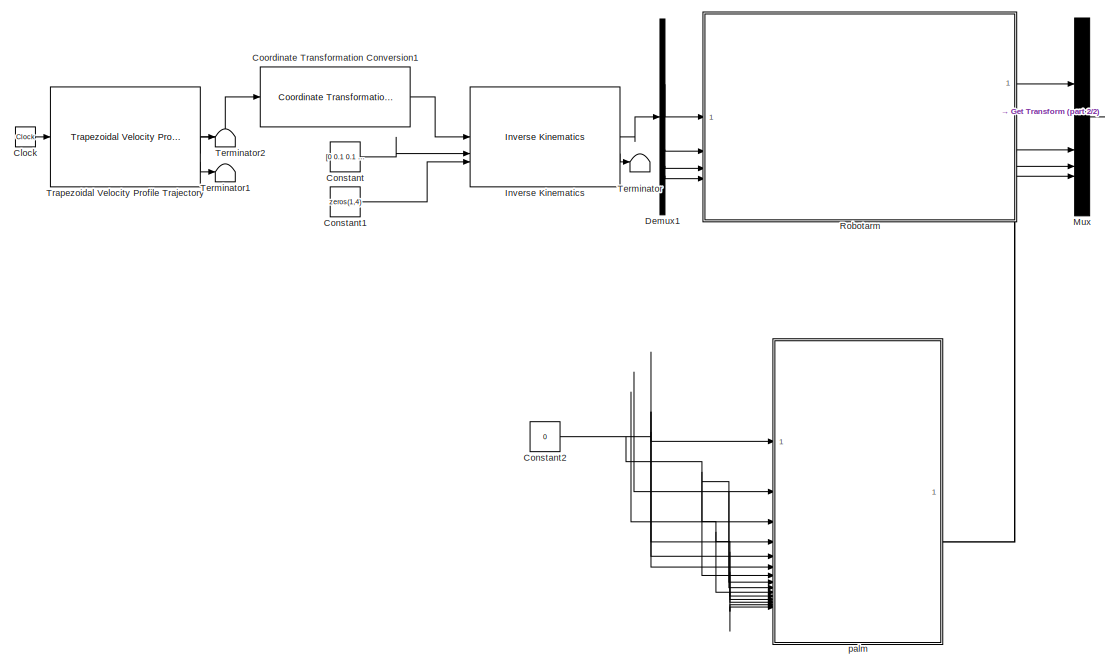
[diagram: root canvas - part 1/2, left side, full height]
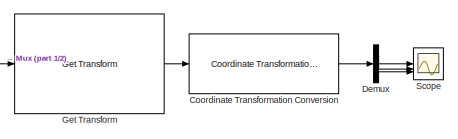
[diagram: root canvas - part 2/2, top right region]
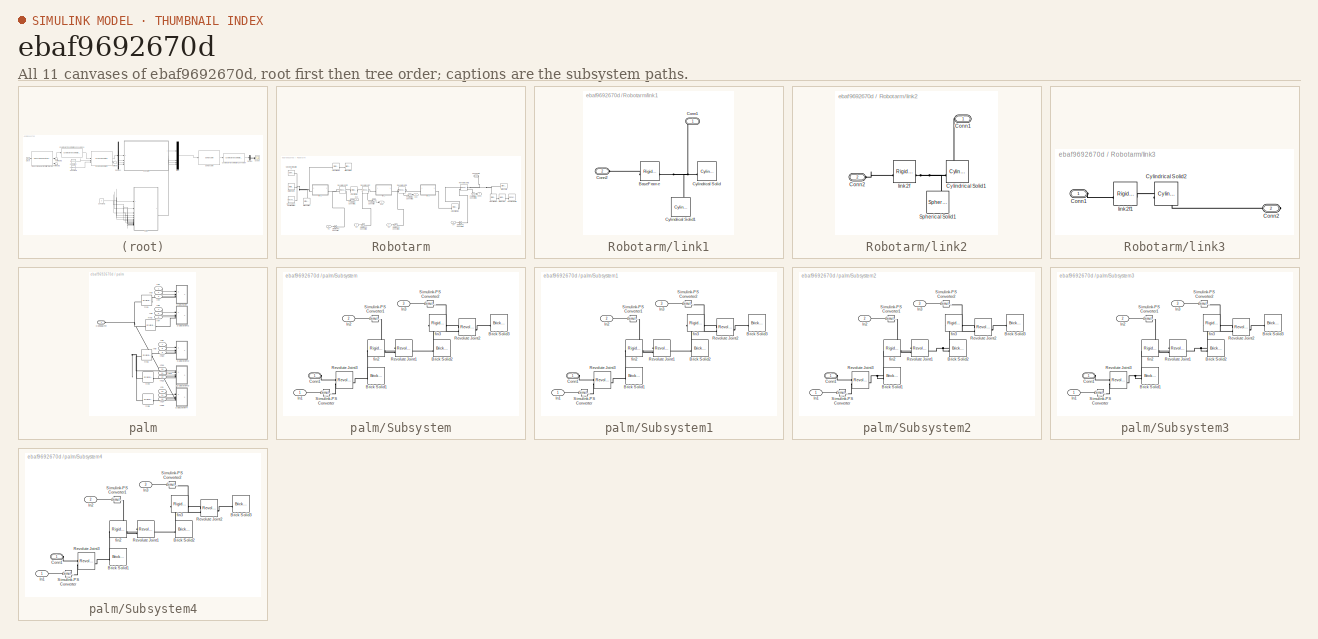
[diagram: thumbnail index - all 11 canvases of the model, root first then tree order]
MODEL slx_ebaf9692670d
KIND model
CONFIG AbsTol = auto
CONFIG EnableMultiTasking = off
CONFIG FixedStep = auto
CONFIG MaxStep = auto
CONFIG MinStep = auto
CONFIG RelTol = 1e-3
CONFIG SampleTimeConstraint = Unconstrained
CONFIG SolverName = VariableStepAuto
CONFIG StartTime = 0.0
CONFIG StopTime = 225
BLOCK [Clock] Clock
BLOCK [Constant] Constant
  Value = [0 0.1 0.1 2 2 2]
BLOCK [Constant] Constant1
  Value = zeros(1,4)
BLOCK [Constant] Constant2
  Value = 0
BLOCK [Reference] Coordinate Transformation Conversion  REF=robotcorelib/Coordinate Transformation Conversion
  SourceBlock = robotcorelib/Coordinate Transformation Conversion
  SourceType = robotics.slcore.internal.block.CoordinateTransformationConversion
BLOCK [Reference] Coordinate Transformation Conversion1  REF=robotcorelib/Coordinate Transformation Conversion
  SourceBlock = robotcorelib/Coordinate Transformation Conversion
  SourceType = robotics.slcore.internal.block.CoordinateTransformationConversion
BLOCK [Demux] Demux
  Outputs = 3
BLOCK [Demux] Demux1
BLOCK [Reference] Get Transform  REF=robotmaniplib/Get Transform
  SourceBlock = robotmaniplib/Get Transform
  SourceType = Get Transform
BLOCK [Reference] Inverse Kinematics  REF=robotmaniplib/Inverse Kinematics
  SourceBlock = robotmaniplib/Inverse Kinematics
  SourceType = Inverse Kinematics
BLOCK [Mux] Mux
  DisplayOption = bar
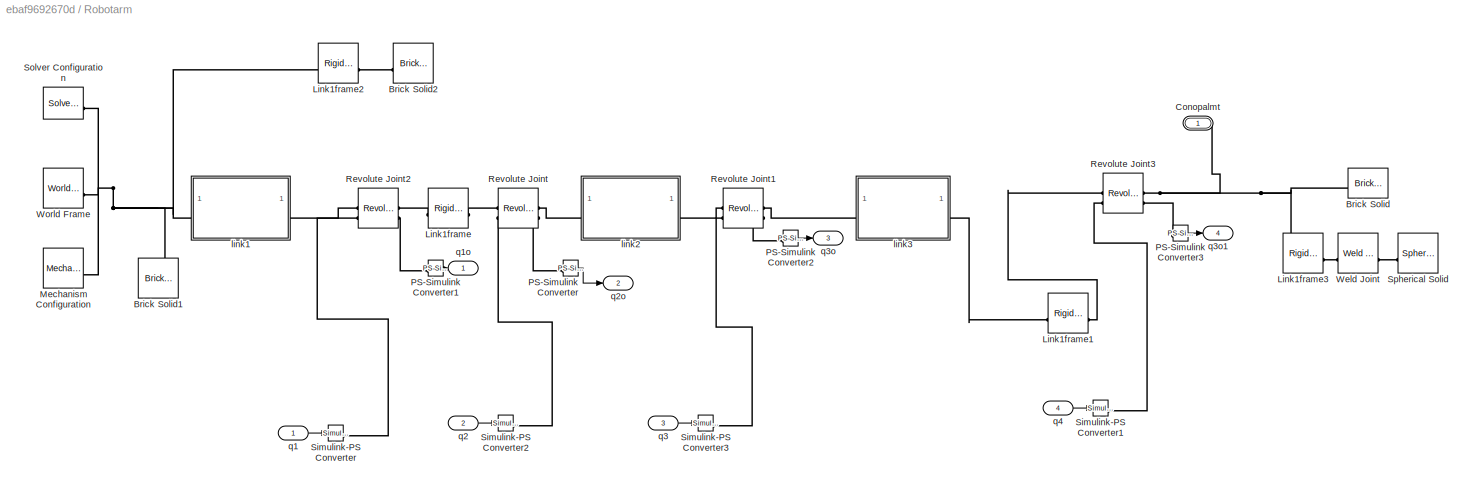
BLOCK [SubSystem] Robotarm
  PortSchema = {"entries":[{"content":{"sides":[{"content":{"connectorIds":["In1","In2","In3","In4"]},"type":"ConnectorPlacement.EquallySpacedRectSide","uuid":"3eada144-4609-4a50-9774-9ad20b4ca83f"},{"content":{"connectorIds":["Out1","Out2","Out3","Out4"],"side":"RIGHT"},"type":"ConnectorPlacement.EquallySpacedRectSide","uuid":"bfbd1838-c92d-4a93-b351-b0c9c082256f"},{"content":{"connectorIds":[],"side":"TOP"},"t...<+431ch>
BLOCK [Reference] Robotarm/Brick Solid  REF=sm_lib/Body Elements/Brick Solid
  SourceBlock = sm_lib/Body Elements/Brick Solid
  SourceType = Brick Solid
BLOCK [Reference] Robotarm/Brick Solid1  REF=sm_lib/Body Elements/Brick Solid
  NameLocation = right
  SourceBlock = sm_lib/Body Elements/Brick Solid
  SourceType = Brick Solid
BLOCK [Reference] Robotarm/Brick Solid2  REF=sm_lib/Body Elements/Brick Solid
  NameLocation = top
  SourceBlock = sm_lib/Body Elements/Brick Solid
  SourceType = Brick Solid
BLOCK [PMIOPort] Robotarm/Conopalmt
  Side = Right
BLOCK [Reference] Robotarm/Link1frame  REF=sm_lib/Frames and
Transforms/Rigid
Transform
  SourceBlock = sm_lib/Frames and\nTransforms/Rigid\nTransform
  SourceType = Rigid\nTransform
BLOCK [Reference] Robotarm/Link1frame1  REF=sm_lib/Frames and
Transforms/Rigid
Transform
  SourceBlock = sm_lib/Frames and\nTransforms/Rigid\nTransform
  SourceType = Rigid\nTransform
BLOCK [Reference] Robotarm/Link1frame2  REF=sm_lib/Frames and
Transforms/Rigid
Transform
  SourceBlock = sm_lib/Frames and\nTransforms/Rigid\nTransform
  SourceType = Rigid\nTransform
BLOCK [Reference] Robotarm/Link1frame3  REF=sm_lib/Frames and
Transforms/Rigid
Transform
  SourceBlock = sm_lib/Frames and\nTransforms/Rigid\nTransform
  SourceType = Rigid\nTransform
BLOCK [Reference] Robotarm/Mechanism Configuration  REF=sm_lib/Utilities/Mechanism
Configuration
  SourceBlock = sm_lib/Utilities/Mechanism\nConfiguration
  SourceType = Mechanism\nConfiguration
BLOCK [Reference] Robotarm/PS-Simulink Converter  REF=nesl_utility/PS-Simulink
Converter
  SourceBlock = nesl_utility/PS-Simulink\nConverter
  SourceType = PS-Simulink\nConverter
BLOCK [Reference] Robotarm/PS-Simulink Converter1  REF=nesl_utility/PS-Simulink
Converter
  SourceBlock = nesl_utility/PS-Simulink\nConverter
  SourceType = PS-Simulink\nConverter
BLOCK [Reference] Robotarm/PS-Simulink Converter2  REF=nesl_utility/PS-Simulink
Converter
  NameLocation = right
  SourceBlock = nesl_utility/PS-Simulink\nConverter
  SourceType = PS-Simulink\nConverter
BLOCK [Reference] Robotarm/PS-Simulink Converter3  REF=nesl_utility/PS-Simulink
Converter
  NameLocation = right
  SourceBlock = nesl_utility/PS-Simulink\nConverter
  SourceType = PS-Simulink\nConverter
BLOCK [Reference] Robotarm/Revolute Joint  REF=sm_lib/Joints/Revolute Joint
  SourceBlock = sm_lib/Joints/Revolute Joint
  SourceType = Revolute Joint
BLOCK [Reference] Robotarm/Revolute Joint1  REF=sm_lib/Joints/Revolute Joint
  SourceBlock = sm_lib/Joints/Revolute Joint
  SourceType = Revolute Joint
BLOCK [Reference] Robotarm/Revolute Joint2  REF=sm_lib/Joints/Revolute Joint
  SourceBlock = sm_lib/Joints/Revolute Joint
  SourceType = Revolute Joint
BLOCK [Reference] Robotarm/Revolute Joint3  REF=sm_lib/Joints/Revolute Joint
  SourceBlock = sm_lib/Joints/Revolute Joint
  SourceType = Revolute Joint
BLOCK [Reference] Robotarm/Simulink-PS Converter  REF=nesl_utility/Simulink-PS
Converter
  SourceBlock = nesl_utility/Simulink-PS\nConverter
  SourceType = Simulink-PS\nConverter
BLOCK [Reference] Robotarm/Simulink-PS Converter1  REF=nesl_utility/Simulink-PS
Converter
  SourceBlock = nesl_utility/Simulink-PS\nConverter
  SourceType = Simulink-PS\nConverter
BLOCK [Reference] Robotarm/Simulink-PS Converter2  REF=nesl_utility/Simulink-PS
Converter
  SourceBlock = nesl_utility/Simulink-PS\nConverter
  SourceType = Simulink-PS\nConverter
BLOCK [Reference] Robotarm/Simulink-PS Converter3  REF=nesl_utility/Simulink-PS
Converter
  SourceBlock = nesl_utility/Simulink-PS\nConverter
  SourceType = Simulink-PS\nConverter
BLOCK [Reference] Robotarm/Solver Configuration  REF=nesl_utility/Solver
Configuration
  SourceBlock = nesl_utility/Solver\nConfiguration
  SourceType = Solver\nConfiguration
BLOCK [Reference] Robotarm/Spherical Solid  REF=sm_lib/Body Elements/Spherical Solid
  SourceBlock = sm_lib/Body Elements/Spherical Solid
  SourceType = Spherical Solid
BLOCK [Reference] Robotarm/Weld Joint  REF=sm_lib/Joints/Weld Joint
  SourceBlock = sm_lib/Joints/Weld Joint
  SourceType = Weld Joint
BLOCK [Reference] Robotarm/World Frame  REF=sm_lib/Frames and
Transforms/World Frame
  SourceBlock = sm_lib/Frames and\nTransforms/World Frame
  SourceType = World Frame
BLOCK [SubSystem] Robotarm/link1
BLOCK [Reference] Robotarm/link1/BaseFrame  REF=sm_lib/Frames and
Transforms/Rigid
Transform
  SourceBlock = sm_lib/Frames and\nTransforms/Rigid\nTransform
  SourceType = Rigid\nTransform
BLOCK [PMIOPort] Robotarm/link1/Conn1
  Side = Right
BLOCK [PMIOPort] Robotarm/link1/Conn2
  Port = 2
  Side = Left
BLOCK [Reference] Robotarm/link1/Cylindrical Solid  REF=sm_lib/Body Elements/Cylindrical Solid
  SourceBlock = sm_lib/Body Elements/Cylindrical Solid
  SourceType = Cylindrical Solid
BLOCK [Reference] Robotarm/link1/Cylindrical Solid1  REF=sm_lib/Body Elements/Cylindrical Solid
  NameLocation = right
  SourceBlock = sm_lib/Body Elements/Cylindrical Solid
  SourceType = Cylindrical Solid
BLOCK [SubSystem] Robotarm/link2
BLOCK [PMIOPort] Robotarm/link2/Conn1
  Side = Right
BLOCK [PMIOPort] Robotarm/link2/Conn2
  Port = 2
  Side = Left
BLOCK [Reference] Robotarm/link2/Cylindrical Solid1  REF=sm_lib/Body Elements/Cylindrical Solid
  SourceBlock = sm_lib/Body Elements/Cylindrical Solid
  SourceType = Cylindrical Solid
BLOCK [Reference] Robotarm/link2/Spherical Solid1  REF=sm_lib/Body Elements/Spherical Solid
  NameLocation = right
  SourceBlock = sm_lib/Body Elements/Spherical Solid
  SourceType = Spherical Solid
BLOCK [Reference] Robotarm/link2/link2f  REF=sm_lib/Frames and
Transforms/Rigid
Transform
  SourceBlock = sm_lib/Frames and\nTransforms/Rigid\nTransform
  SourceType = Rigid\nTransform
BLOCK [SubSystem] Robotarm/link3
BLOCK [PMIOPort] Robotarm/link3/Conn1
  Side = Left
BLOCK [PMIOPort] Robotarm/link3/Conn2
  Port = 2
  Side = Right
BLOCK [Reference] Robotarm/link3/Cylindrical Solid2  REF=sm_lib/Body Elements/Cylindrical Solid
  SourceBlock = sm_lib/Body Elements/Cylindrical Solid
  SourceType = Cylindrical Solid
BLOCK [Reference] Robotarm/link3/link2f1  REF=sm_lib/Frames and
Transforms/Rigid
Transform
  SourceBlock = sm_lib/Frames and\nTransforms/Rigid\nTransform
  SourceType = Rigid\nTransform
BLOCK [Inport] Robotarm/q1
BLOCK [Outport] Robotarm/q1o
BLOCK [Inport] Robotarm/q2
  Port = 2
BLOCK [Outport] Robotarm/q2o
  Port = 2
BLOCK [Inport] Robotarm/q3
  Port = 3
BLOCK [Outport] Robotarm/q3o
  Port = 3
BLOCK [Outport] Robotarm/q3o1
  Port = 4
BLOCK [Inport] Robotarm/q4
  Port = 4
BLOCK [Scope] Scope
  Floating = off
  NumInputPorts = 3
  ScopeSpecificationString = Simulink.scopes.TimeScopeBlockCfg('CurrentConfiguration', extmgr.ConfigurationSet(extmgr.Configuration('Core','General UI',true),extmgr.Configuration('Core','Source UI',true),extmgr.Configuration('Sources','WiredSimulink',true),extmgr.Configuration('Visuals','Time Domain',true,'SerializedDisplays',{struct('MinYLimReal','-1.08302','MaxYLimReal','0.4119','YLabelReal','','MinYLimMag','0.00000','MaxYL...<+1400ch>
BLOCK [Terminator] Terminator
BLOCK [Terminator] Terminator1
BLOCK [Terminator] Terminator2
BLOCK [Reference] Trapezoidal Velocity Profile Trajectory  REF=robotcorelib/Trapezoidal Velocity Profile Trajectory
  LibrarySourceBlock = robotutilslib/Trapezoidal Velocity Profile Trajectory
  SourceBlock = robotcorelib/Trapezoidal Velocity Profile Trajectory
  SourceType = robotics.slcore.internal.block.TrapVelTrajSys
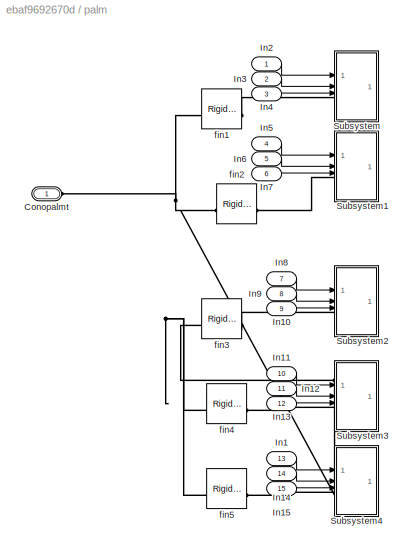
BLOCK [SubSystem] palm
  PortSchema = {"entries":[{"content":{"sides":[{"content":{"connectorIds":["In1","In2","In3","In4","In5","In6","In7","In8","In9","In10","In11","In12","In13","In14","In15"]},"type":"ConnectorPlacement.EquallySpacedRectSide","uuid":"ee3af5e7-a0da-4917-84bb-ce6ca8291ed8"},{"content":{"connectorIds":[],"side":"RIGHT"},"type":"ConnectorPlacement.EquallySpacedRectSide","uuid":"40f3b4ea-5d75-4d62-9394-0cf38ae50b93"},{...<+332ch>
BLOCK [PMIOPort] palm/Conopalmt
  Side = Left
BLOCK [Inport] palm/In1
  Port = 13
BLOCK [Inport] palm/In10
  Port = 9
BLOCK [Inport] palm/In11
  Port = 10
BLOCK [Inport] palm/In12
  Port = 11
BLOCK [Inport] palm/In13
  Port = 12
BLOCK [Inport] palm/In14
  Port = 14
BLOCK [Inport] palm/In15
  Port = 15
BLOCK [Inport] palm/In2
BLOCK [Inport] palm/In3
  Port = 2
BLOCK [Inport] palm/In4
  Port = 3
BLOCK [Inport] palm/In5
  Port = 4
BLOCK [Inport] palm/In6
  Port = 5
BLOCK [Inport] palm/In7
  Port = 6
BLOCK [Inport] palm/In8
  Port = 7
BLOCK [Inport] palm/In9
  Port = 8
BLOCK [SubSystem] palm/Subsystem
BLOCK [Reference] palm/Subsystem/Brick Solid1  REF=sm_lib/Body Elements/Brick Solid
  NameLocation = top
  SourceBlock = sm_lib/Body Elements/Brick Solid
  SourceType = Brick Solid
BLOCK [Reference] palm/Subsystem/Brick Solid2  REF=sm_lib/Body Elements/Brick Solid
  NameLocation = top
  SourceBlock = sm_lib/Body Elements/Brick Solid
  SourceType = Brick Solid
BLOCK [Reference] palm/Subsystem/Brick Solid3  REF=sm_lib/Body Elements/Brick Solid
  NameLocation = top
  SourceBlock = sm_lib/Body Elements/Brick Solid
  SourceType = Brick Solid
BLOCK [PMIOPort] palm/Subsystem/Conn1
  Side = Left
BLOCK [Inport] palm/Subsystem/In1
BLOCK [Inport] palm/Subsystem/In2
  Port = 2
BLOCK [Inport] palm/Subsystem/In3
  Port = 3
BLOCK [Reference] palm/Subsystem/Revolute Joint1  REF=sm_lib/Joints/Revolute Joint
  SourceBlock = sm_lib/Joints/Revolute Joint
  SourceType = Revolute Joint
BLOCK [Reference] palm/Subsystem/Revolute Joint2  REF=sm_lib/Joints/Revolute Joint
  SourceBlock = sm_lib/Joints/Revolute Joint
  SourceType = Revolute Joint
BLOCK [Reference] palm/Subsystem/Revolute Joint3  REF=sm_lib/Joints/Revolute Joint
  SourceBlock = sm_lib/Joints/Revolute Joint
  SourceType = Revolute Joint
BLOCK [Reference] palm/Subsystem/Simulink-PS Converter  REF=nesl_utility/Simulink-PS
Converter
  SourceBlock = nesl_utility/Simulink-PS\nConverter
  SourceType = Simulink-PS\nConverter
BLOCK [Reference] palm/Subsystem/Simulink-PS Converter1  REF=nesl_utility/Simulink-PS
Converter
  SourceBlock = nesl_utility/Simulink-PS\nConverter
  SourceType = Simulink-PS\nConverter
BLOCK [Reference] palm/Subsystem/Simulink-PS Converter2  REF=nesl_utility/Simulink-PS
Converter
  SourceBlock = nesl_utility/Simulink-PS\nConverter
  SourceType = Simulink-PS\nConverter
BLOCK [Reference] palm/Subsystem/fin2  REF=sm_lib/Frames and
Transforms/Rigid
Transform
  SourceBlock = sm_lib/Frames and\nTransforms/Rigid\nTransform
  SourceType = Rigid\nTransform
BLOCK [Reference] palm/Subsystem/fin3  REF=sm_lib/Frames and
Transforms/Rigid
Transform
  SourceBlock = sm_lib/Frames and\nTransforms/Rigid\nTransform
  SourceType = Rigid\nTransform
BLOCK [SubSystem] palm/Subsystem1
BLOCK [Reference] palm/Subsystem1/Brick Solid1  REF=sm_lib/Body Elements/Brick Solid
  NameLocation = top
  SourceBlock = sm_lib/Body Elements/Brick Solid
  SourceType = Brick Solid
BLOCK [Reference] palm/Subsystem1/Brick Solid2  REF=sm_lib/Body Elements/Brick Solid
  NameLocation = top
  SourceBlock = sm_lib/Body Elements/Brick Solid
  SourceType = Brick Solid
BLOCK [Reference] palm/Subsystem1/Brick Solid3  REF=sm_lib/Body Elements/Brick Solid
  NameLocation = top
  SourceBlock = sm_lib/Body Elements/Brick Solid
  SourceType = Brick Solid
BLOCK [PMIOPort] palm/Subsystem1/Conn1
  Side = Left
BLOCK [Inport] palm/Subsystem1/In1
BLOCK [Inport] palm/Subsystem1/In2
  Port = 2
BLOCK [Inport] palm/Subsystem1/In3
  Port = 3
BLOCK [Reference] palm/Subsystem1/Revolute Joint1  REF=sm_lib/Joints/Revolute Joint
  SourceBlock = sm_lib/Joints/Revolute Joint
  SourceType = Revolute Joint
BLOCK [Reference] palm/Subsystem1/Revolute Joint2  REF=sm_lib/Joints/Revolute Joint
  SourceBlock = sm_lib/Joints/Revolute Joint
  SourceType = Revolute Joint
BLOCK [Reference] palm/Subsystem1/Revolute Joint3  REF=sm_lib/Joints/Revolute Joint
  SourceBlock = sm_lib/Joints/Revolute Joint
  SourceType = Revolute Joint
BLOCK [Reference] palm/Subsystem1/Simulink-PS Converter  REF=nesl_utility/Simulink-PS
Converter
  SourceBlock = nesl_utility/Simulink-PS\nConverter
  SourceType = Simulink-PS\nConverter
BLOCK [Reference] palm/Subsystem1/Simulink-PS Converter1  REF=nesl_utility/Simulink-PS
Converter
  SourceBlock = nesl_utility/Simulink-PS\nConverter
  SourceType = Simulink-PS\nConverter
BLOCK [Reference] palm/Subsystem1/Simulink-PS Converter2  REF=nesl_utility/Simulink-PS
Converter
  SourceBlock = nesl_utility/Simulink-PS\nConverter
  SourceType = Simulink-PS\nConverter
BLOCK [Reference] palm/Subsystem1/fin2  REF=sm_lib/Frames and
Transforms/Rigid
Transform
  SourceBlock = sm_lib/Frames and\nTransforms/Rigid\nTransform
  SourceType = Rigid\nTransform
BLOCK [Reference] palm/Subsystem1/fin3  REF=sm_lib/Frames and
Transforms/Rigid
Transform
  SourceBlock = sm_lib/Frames and\nTransforms/Rigid\nTransform
  SourceType = Rigid\nTransform
BLOCK [SubSystem] palm/Subsystem2
BLOCK [Reference] palm/Subsystem2/Brick Solid1  REF=sm_lib/Body Elements/Brick Solid
  NameLocation = top
  SourceBlock = sm_lib/Body Elements/Brick Solid
  SourceType = Brick Solid
BLOCK [Reference] palm/Subsystem2/Brick Solid2  REF=sm_lib/Body Elements/Brick Solid
  NameLocation = top
  SourceBlock = sm_lib/Body Elements/Brick Solid
  SourceType = Brick Solid
BLOCK [Reference] palm/Subsystem2/Brick Solid3  REF=sm_lib/Body Elements/Brick Solid
  NameLocation = top
  SourceBlock = sm_lib/Body Elements/Brick Solid
  SourceType = Brick Solid
BLOCK [PMIOPort] palm/Subsystem2/Conn1
  Side = Left
BLOCK [Inport] palm/Subsystem2/In1
BLOCK [Inport] palm/Subsystem2/In2
  Port = 2
BLOCK [Inport] palm/Subsystem2/In3
  Port = 3
BLOCK [Reference] palm/Subsystem2/Revolute Joint1  REF=sm_lib/Joints/Revolute Joint
  SourceBlock = sm_lib/Joints/Revolute Joint
  SourceType = Revolute Joint
BLOCK [Reference] palm/Subsystem2/Revolute Joint2  REF=sm_lib/Joints/Revolute Joint
  SourceBlock = sm_lib/Joints/Revolute Joint
  SourceType = Revolute Joint
BLOCK [Reference] palm/Subsystem2/Revolute Joint3  REF=sm_lib/Joints/Revolute Joint
  SourceBlock = sm_lib/Joints/Revolute Joint
  SourceType = Revolute Joint
BLOCK [Reference] palm/Subsystem2/Simulink-PS Converter  REF=nesl_utility/Simulink-PS
Converter
  SourceBlock = nesl_utility/Simulink-PS\nConverter
  SourceType = Simulink-PS\nConverter
BLOCK [Reference] palm/Subsystem2/Simulink-PS Converter1  REF=nesl_utility/Simulink-PS
Converter
  SourceBlock = nesl_utility/Simulink-PS\nConverter
  SourceType = Simulink-PS\nConverter
BLOCK [Reference] palm/Subsystem2/Simulink-PS Converter2  REF=nesl_utility/Simulink-PS
Converter
  SourceBlock = nesl_utility/Simulink-PS\nConverter
  SourceType = Simulink-PS\nConverter
BLOCK [Reference] palm/Subsystem2/fin2  REF=sm_lib/Frames and
Transforms/Rigid
Transform
  SourceBlock = sm_lib/Frames and\nTransforms/Rigid\nTransform
  SourceType = Rigid\nTransform
BLOCK [Reference] palm/Subsystem2/fin3  REF=sm_lib/Frames and
Transforms/Rigid
Transform
  SourceBlock = sm_lib/Frames and\nTransforms/Rigid\nTransform
  SourceType = Rigid\nTransform
BLOCK [SubSystem] palm/Subsystem3
BLOCK [Reference] palm/Subsystem3/Brick Solid1  REF=sm_lib/Body Elements/Brick Solid
  NameLocation = top
  SourceBlock = sm_lib/Body Elements/Brick Solid
  SourceType = Brick Solid
BLOCK [Reference] palm/Subsystem3/Brick Solid2  REF=sm_lib/Body Elements/Brick Solid
  NameLocation = top
  SourceBlock = sm_lib/Body Elements/Brick Solid
  SourceType = Brick Solid
BLOCK [Reference] palm/Subsystem3/Brick Solid3  REF=sm_lib/Body Elements/Brick Solid
  NameLocation = top
  SourceBlock = sm_lib/Body Elements/Brick Solid
  SourceType = Brick Solid
BLOCK [PMIOPort] palm/Subsystem3/Conn1
  Side = Left
BLOCK [Inport] palm/Subsystem3/In1
BLOCK [Inport] palm/Subsystem3/In2
  Port = 2
BLOCK [Inport] palm/Subsystem3/In3
  Port = 3
BLOCK [Reference] palm/Subsystem3/Revolute Joint1  REF=sm_lib/Joints/Revolute Joint
  SourceBlock = sm_lib/Joints/Revolute Joint
  SourceType = Revolute Joint
BLOCK [Reference] palm/Subsystem3/Revolute Joint2  REF=sm_lib/Joints/Revolute Joint
  SourceBlock = sm_lib/Joints/Revolute Joint
  SourceType = Revolute Joint
BLOCK [Reference] palm/Subsystem3/Revolute Joint3  REF=sm_lib/Joints/Revolute Joint
  SourceBlock = sm_lib/Joints/Revolute Joint
  SourceType = Revolute Joint
BLOCK [Reference] palm/Subsystem3/Simulink-PS Converter  REF=nesl_utility/Simulink-PS
Converter
  SourceBlock = nesl_utility/Simulink-PS\nConverter
  SourceType = Simulink-PS\nConverter
BLOCK [Reference] palm/Subsystem3/Simulink-PS Converter1  REF=nesl_utility/Simulink-PS
Converter
  SourceBlock = nesl_utility/Simulink-PS\nConverter
  SourceType = Simulink-PS\nConverter
BLOCK [Reference] palm/Subsystem3/Simulink-PS Converter2  REF=nesl_utility/Simulink-PS
Converter
  SourceBlock = nesl_utility/Simulink-PS\nConverter
  SourceType = Simulink-PS\nConverter
BLOCK [Reference] palm/Subsystem3/fin2  REF=sm_lib/Frames and
Transforms/Rigid
Transform
  SourceBlock = sm_lib/Frames and\nTransforms/Rigid\nTransform
  SourceType = Rigid\nTransform
BLOCK [Reference] palm/Subsystem3/fin3  REF=sm_lib/Frames and
Transforms/Rigid
Transform
  SourceBlock = sm_lib/Frames and\nTransforms/Rigid\nTransform
  SourceType = Rigid\nTransform
BLOCK [SubSystem] palm/Subsystem4
BLOCK [Reference] palm/Subsystem4/Brick Solid1  REF=sm_lib/Body Elements/Brick Solid
  NameLocation = top
  SourceBlock = sm_lib/Body Elements/Brick Solid
  SourceType = Brick Solid
BLOCK [Reference] palm/Subsystem4/Brick Solid2  REF=sm_lib/Body Elements/Brick Solid
  NameLocation = top
  SourceBlock = sm_lib/Body Elements/Brick Solid
  SourceType = Brick Solid
BLOCK [Reference] palm/Subsystem4/Brick Solid3  REF=sm_lib/Body Elements/Brick Solid
  NameLocation = top
  SourceBlock = sm_lib/Body Elements/Brick Solid
  SourceType = Brick Solid
BLOCK [PMIOPort] palm/Subsystem4/Conn1
  Side = Left
BLOCK [Inport] palm/Subsystem4/In1
BLOCK [Inport] palm/Subsystem4/In2
  Port = 2
BLOCK [Inport] palm/Subsystem4/In3
  Port = 3
BLOCK [Reference] palm/Subsystem4/Revolute Joint1  REF=sm_lib/Joints/Revolute Joint
  SourceBlock = sm_lib/Joints/Revolute Joint
  SourceType = Revolute Joint
BLOCK [Reference] palm/Subsystem4/Revolute Joint2  REF=sm_lib/Joints/Revolute Joint
  SourceBlock = sm_lib/Joints/Revolute Joint
  SourceType = Revolute Joint
BLOCK [Reference] palm/Subsystem4/Revolute Joint3  REF=sm_lib/Joints/Revolute Joint
  SourceBlock = sm_lib/Joints/Revolute Joint
  SourceType = Revolute Joint
BLOCK [Reference] palm/Subsystem4/Simulink-PS Converter  REF=nesl_utility/Simulink-PS
Converter
  SourceBlock = nesl_utility/Simulink-PS\nConverter
  SourceType = Simulink-PS\nConverter
BLOCK [Reference] palm/Subsystem4/Simulink-PS Converter1  REF=nesl_utility/Simulink-PS
Converter
  SourceBlock = nesl_utility/Simulink-PS\nConverter
  SourceType = Simulink-PS\nConverter
BLOCK [Reference] palm/Subsystem4/Simulink-PS Converter2  REF=nesl_utility/Simulink-PS
Converter
  SourceBlock = nesl_utility/Simulink-PS\nConverter
  SourceType = Simulink-PS\nConverter
BLOCK [Reference] palm/Subsystem4/fin2  REF=sm_lib/Frames and
Transforms/Rigid
Transform
  SourceBlock = sm_lib/Frames and\nTransforms/Rigid\nTransform
  SourceType = Rigid\nTransform
BLOCK [Reference] palm/Subsystem4/fin3  REF=sm_lib/Frames and
Transforms/Rigid
Transform
  SourceBlock = sm_lib/Frames and\nTransforms/Rigid\nTransform
  SourceType = Rigid\nTransform
BLOCK [Reference] palm/fin1  REF=sm_lib/Frames and
Transforms/Rigid
Transform
  SourceBlock = sm_lib/Frames and\nTransforms/Rigid\nTransform
  SourceType = Rigid\nTransform
BLOCK [Reference] palm/fin2  REF=sm_lib/Frames and
Transforms/Rigid
Transform
  SourceBlock = sm_lib/Frames and\nTransforms/Rigid\nTransform
  SourceType = Rigid\nTransform
BLOCK [Reference] palm/fin3  REF=sm_lib/Frames and
Transforms/Rigid
Transform
  SourceBlock = sm_lib/Frames and\nTransforms/Rigid\nTransform
  SourceType = Rigid\nTransform
BLOCK [Reference] palm/fin4  REF=sm_lib/Frames and
Transforms/Rigid
Transform
  SourceBlock = sm_lib/Frames and\nTransforms/Rigid\nTransform
  SourceType = Rigid\nTransform
BLOCK [Reference] palm/fin5  REF=sm_lib/Frames and
Transforms/Rigid
Transform
  SourceBlock = sm_lib/Frames and\nTransforms/Rigid\nTransform
  SourceType = Rigid\nTransform
LINE Clock:1 -> Trapezoidal Velocity Profile Trajectory:1
LINE Constant1:1 -> Inverse Kinematics:3
NET Constant2:1 -> palm:1, palm:10, palm:11, palm:12, palm:13, palm:14, palm:15, palm:2, palm:3, palm:4, palm:5, palm:6, palm:7, palm:8, palm:9
LINE Constant:1 -> Inverse Kinematics:2
LINE Coordinate Transformation Conversion1:1 -> Inverse Kinematics:1
LINE Coordinate Transformation Conversion:1 -> Demux:1
LINE Demux1:1 -> Robotarm:1
LINE Demux1:2 -> Robotarm:2
LINE Demux1:3 -> Robotarm:3
LINE Demux1:4 -> Robotarm:4
LINE Demux:1 -> Scope:1
LINE Demux:2 -> Scope:2
LINE Demux:3 -> Scope:3
LINE Get Transform:1 -> Coordinate Transformation Conversion:1
LINE Inverse Kinematics:1 -> Demux1:1
LINE Inverse Kinematics:2 -> Terminator:1
LINE Mux:1 -> Get Transform:1
LINE Robotarm/PS-Simulink Converter1:1 -> Robotarm/q1o:1
LINE Robotarm/PS-Simulink Converter2:1 -> Robotarm/q3o:1
LINE Robotarm/PS-Simulink Converter3:1 -> Robotarm/q3o1:1
LINE Robotarm/PS-Simulink Converter:1 -> Robotarm/q2o:1
LINE Robotarm/q1:1 -> Robotarm/Simulink-PS Converter:1
LINE Robotarm/q2:1 -> Robotarm/Simulink-PS Converter2:1
LINE Robotarm/q3:1 -> Robotarm/Simulink-PS Converter3:1
LINE Robotarm/q4:1 -> Robotarm/Simulink-PS Converter1:1
LINE Robotarm:1 -> Mux:1
LINE Robotarm:2 -> Mux:2
LINE Robotarm:3 -> Mux:3
LINE Robotarm:4 -> Mux:4
LINE Trapezoidal Velocity Profile Trajectory:1 -> Coordinate Transformation Conversion1:1
LINE Trapezoidal Velocity Profile Trajectory:2 -> Terminator2:1
LINE Trapezoidal Velocity Profile Trajectory:3 -> Terminator1:1
LINE palm/In10:1 -> palm/Subsystem2:3
LINE palm/In11:1 -> palm/Subsystem3:1
LINE palm/In12:1 -> palm/Subsystem3:2
LINE palm/In13:1 -> palm/Subsystem3:3
LINE palm/In14:1 -> palm/Subsystem4:2
LINE palm/In15:1 -> palm/Subsystem4:3
LINE palm/In1:1 -> palm/Subsystem4:1
LINE palm/In2:1 -> palm/Subsystem:1
LINE palm/In3:1 -> palm/Subsystem:2
LINE palm/In4:1 -> palm/Subsystem:3
LINE palm/In5:1 -> palm/Subsystem1:1
LINE palm/In6:1 -> palm/Subsystem1:2
LINE palm/In7:1 -> palm/Subsystem1:3
LINE palm/In8:1 -> palm/Subsystem2:1
LINE palm/In9:1 -> palm/Subsystem2:2
LINE palm/Subsystem/In1:1 -> palm/Subsystem/Simulink-PS Converter:1
LINE palm/Subsystem/In2:1 -> palm/Subsystem/Simulink-PS Converter1:1
LINE palm/Subsystem/In3:1 -> palm/Subsystem/Simulink-PS Converter2:1
LINE palm/Subsystem1/In1:1 -> palm/Subsystem1/Simulink-PS Converter:1
LINE palm/Subsystem1/In2:1 -> palm/Subsystem1/Simulink-PS Converter1:1
LINE palm/Subsystem1/In3:1 -> palm/Subsystem1/Simulink-PS Converter2:1
LINE palm/Subsystem2/In1:1 -> palm/Subsystem2/Simulink-PS Converter:1
LINE palm/Subsystem2/In2:1 -> palm/Subsystem2/Simulink-PS Converter1:1
LINE palm/Subsystem2/In3:1 -> palm/Subsystem2/Simulink-PS Converter2:1
LINE palm/Subsystem3/In1:1 -> palm/Subsystem3/Simulink-PS Converter:1
LINE palm/Subsystem3/In2:1 -> palm/Subsystem3/Simulink-PS Converter1:1
LINE palm/Subsystem3/In3:1 -> palm/Subsystem3/Simulink-PS Converter2:1
LINE palm/Subsystem4/In1:1 -> palm/Subsystem4/Simulink-PS Converter:1
LINE palm/Subsystem4/In2:1 -> palm/Subsystem4/Simulink-PS Converter1:1
LINE palm/Subsystem4/In3:1 -> palm/Subsystem4/Simulink-PS Converter2:1
PNET net1: Robotarm/Brick Solid1:RConn1 -- Robotarm/Link1frame2:LConn1 -- Robotarm/Mechanism Configuration:RConn1 -- Robotarm/Solver Configuration:RConn1 -- Robotarm/World Frame:RConn1 -- Robotarm/link1:LConn1
PLINE Robotarm/Brick Solid2:LConn1 -- Robotarm/Link1frame2:RConn1
PNET net2: Robotarm/Brick Solid:LConn1 -- Robotarm/Conopalmt:RConn1 -- Robotarm/Link1frame3:LConn1 -- Robotarm/Revolute Joint3:RConn1
PLINE Robotarm/Link1frame1:LConn1 -- Robotarm/link3:RConn1
PLINE Robotarm/Link1frame1:RConn1 -- Robotarm/Revolute Joint3:LConn1
PLINE Robotarm/Link1frame3:RConn1 -- Robotarm/Weld Joint:LConn1
PLINE Robotarm/Link1frame:LConn1 -- Robotarm/Revolute Joint2:RConn1
PLINE Robotarm/Link1frame:RConn1 -- Robotarm/Revolute Joint:LConn1
PLINE Robotarm/PS-Simulink Converter1:LConn1 -- Robotarm/Revolute Joint2:RConn2
PLINE Robotarm/PS-Simulink Converter2:LConn1 -- Robotarm/Revolute Joint1:RConn2
PLINE Robotarm/PS-Simulink Converter3:LConn1 -- Robotarm/Revolute Joint3:RConn2
PLINE Robotarm/PS-Simulink Converter:LConn1 -- Robotarm/Revolute Joint:RConn2
PLINE Robotarm/Revolute Joint1:LConn1 -- Robotarm/link2:RConn1
PLINE Robotarm/Revolute Joint1:LConn2 -- Robotarm/Simulink-PS Converter3:RConn1
PLINE Robotarm/Revolute Joint1:RConn1 -- Robotarm/link3:LConn1
PLINE Robotarm/Revolute Joint2:LConn1 -- Robotarm/link1:RConn1
PLINE Robotarm/Revolute Joint2:LConn2 -- Robotarm/Simulink-PS Converter:RConn1
PLINE Robotarm/Revolute Joint3:LConn2 -- Robotarm/Simulink-PS Converter1:RConn1
PLINE Robotarm/Revolute Joint:LConn2 -- Robotarm/Simulink-PS Converter2:RConn1
PLINE Robotarm/Revolute Joint:RConn1 -- Robotarm/link2:LConn1
PLINE Robotarm/Spherical Solid:RConn1 -- Robotarm/Weld Joint:RConn1
PLINE Robotarm/link1/BaseFrame:LConn1 -- Robotarm/link1/Conn2:RConn1
PNET net3: Robotarm/link1/BaseFrame:RConn1 -- Robotarm/link1/Conn1:RConn1 -- Robotarm/link1/Cylindrical Solid1:LConn1 -- Robotarm/link1/Cylindrical Solid:LConn1
PNET net4: Robotarm/link2/Conn1:RConn1 -- Robotarm/link2/Cylindrical Solid1:LConn1 -- Robotarm/link2/Spherical Solid1:RConn1 -- Robotarm/link2/link2f:RConn1
PLINE Robotarm/link2/Conn2:RConn1 -- Robotarm/link2/link2f:LConn1
PLINE Robotarm/link3/Conn1:RConn1 -- Robotarm/link3/link2f1:LConn1
PNET net5: Robotarm/link3/Conn2:RConn1 -- Robotarm/link3/Cylindrical Solid2:LConn1 -- Robotarm/link3/link2f1:RConn1
PLINE Robotarm:RConn1 -- palm:LConn1
PNET net6: palm/Conopalmt:RConn1 -- palm/fin1:LConn1 -- palm/fin2:LConn1 -- palm/fin3:LConn1 -- palm/fin4:LConn1 -- palm/fin5:LConn1
PNET net7: palm/Subsystem/Brick Solid1:LConn1 -- palm/Subsystem/Revolute Joint3:RConn1 -- palm/Subsystem/fin2:LConn1
PNET net8: palm/Subsystem/Brick Solid2:LConn1 -- palm/Subsystem/Revolute Joint1:RConn1 -- palm/Subsystem/fin3:LConn1
PLINE palm/Subsystem/Brick Solid3:LConn1 -- palm/Subsystem/Revolute Joint2:RConn1
PLINE palm/Subsystem/Conn1:RConn1 -- palm/Subsystem/Revolute Joint3:LConn1
PLINE palm/Subsystem/Revolute Joint1:LConn1 -- palm/Subsystem/fin2:RConn1
PLINE palm/Subsystem/Revolute Joint1:LConn2 -- palm/Subsystem/Simulink-PS Converter1:RConn1
PLINE palm/Subsystem/Revolute Joint2:LConn1 -- palm/Subsystem/fin3:RConn1
PLINE palm/Subsystem/Revolute Joint2:LConn2 -- palm/Subsystem/Simulink-PS Converter2:RConn1
PLINE palm/Subsystem/Revolute Joint3:LConn2 -- palm/Subsystem/Simulink-PS Converter:RConn1
PNET net9: palm/Subsystem1/Brick Solid1:LConn1 -- palm/Subsystem1/Revolute Joint3:RConn1 -- palm/Subsystem1/fin2:LConn1
PNET net10: palm/Subsystem1/Brick Solid2:LConn1 -- palm/Subsystem1/Revolute Joint1:RConn1 -- palm/Subsystem1/fin3:LConn1
PLINE palm/Subsystem1/Brick Solid3:LConn1 -- palm/Subsystem1/Revolute Joint2:RConn1
PLINE palm/Subsystem1/Conn1:RConn1 -- palm/Subsystem1/Revolute Joint3:LConn1
PLINE palm/Subsystem1/Revolute Joint1:LConn1 -- palm/Subsystem1/fin2:RConn1
PLINE palm/Subsystem1/Revolute Joint1:LConn2 -- palm/Subsystem1/Simulink-PS Converter1:RConn1
PLINE palm/Subsystem1/Revolute Joint2:LConn1 -- palm/Subsystem1/fin3:RConn1
PLINE palm/Subsystem1/Revolute Joint2:LConn2 -- palm/Subsystem1/Simulink-PS Converter2:RConn1
PLINE palm/Subsystem1/Revolute Joint3:LConn2 -- palm/Subsystem1/Simulink-PS Converter:RConn1
PLINE palm/Subsystem1:LConn1 -- palm/fin2:RConn1
PNET net11: palm/Subsystem2/Brick Solid1:LConn1 -- palm/Subsystem2/Revolute Joint3:RConn1 -- palm/Subsystem2/fin2:LConn1
PNET net12: palm/Subsystem2/Brick Solid2:LConn1 -- palm/Subsystem2/Revolute Joint1:RConn1 -- palm/Subsystem2/fin3:LConn1
PLINE palm/Subsystem2/Brick Solid3:LConn1 -- palm/Subsystem2/Revolute Joint2:RConn1
PLINE palm/Subsystem2/Conn1:RConn1 -- palm/Subsystem2/Revolute Joint3:LConn1
PLINE palm/Subsystem2/Revolute Joint1:LConn1 -- palm/Subsystem2/fin2:RConn1
PLINE palm/Subsystem2/Revolute Joint1:LConn2 -- palm/Subsystem2/Simulink-PS Converter1:RConn1
PLINE palm/Subsystem2/Revolute Joint2:LConn1 -- palm/Subsystem2/fin3:RConn1
PLINE palm/Subsystem2/Revolute Joint2:LConn2 -- palm/Subsystem2/Simulink-PS Converter2:RConn1
PLINE palm/Subsystem2/Revolute Joint3:LConn2 -- palm/Subsystem2/Simulink-PS Converter:RConn1
PLINE palm/Subsystem2:LConn1 -- palm/fin3:RConn1
PNET net13: palm/Subsystem3/Brick Solid1:LConn1 -- palm/Subsystem3/Revolute Joint3:RConn1 -- palm/Subsystem3/fin2:LConn1
PNET net14: palm/Subsystem3/Brick Solid2:LConn1 -- palm/Subsystem3/Revolute Joint1:RConn1 -- palm/Subsystem3/fin3:LConn1
PLINE palm/Subsystem3/Brick Solid3:LConn1 -- palm/Subsystem3/Revolute Joint2:RConn1
PLINE palm/Subsystem3/Conn1:RConn1 -- palm/Subsystem3/Revolute Joint3:LConn1
PLINE palm/Subsystem3/Revolute Joint1:LConn1 -- palm/Subsystem3/fin2:RConn1
PLINE palm/Subsystem3/Revolute Joint1:LConn2 -- palm/Subsystem3/Simulink-PS Converter1:RConn1
PLINE palm/Subsystem3/Revolute Joint2:LConn1 -- palm/Subsystem3/fin3:RConn1
PLINE palm/Subsystem3/Revolute Joint2:LConn2 -- palm/Subsystem3/Simulink-PS Converter2:RConn1
PLINE palm/Subsystem3/Revolute Joint3:LConn2 -- palm/Subsystem3/Simulink-PS Converter:RConn1
PLINE palm/Subsystem3:LConn1 -- palm/fin4:RConn1
PNET net15: palm/Subsystem4/Brick Solid1:LConn1 -- palm/Subsystem4/Revolute Joint3:RConn1 -- palm/Subsystem4/fin2:LConn1
PNET net16: palm/Subsystem4/Brick Solid2:LConn1 -- palm/Subsystem4/Revolute Joint1:RConn1 -- palm/Subsystem4/fin3:LConn1
PLINE palm/Subsystem4/Brick Solid3:LConn1 -- palm/Subsystem4/Revolute Joint2:RConn1
PLINE palm/Subsystem4/Conn1:RConn1 -- palm/Subsystem4/Revolute Joint3:LConn1
PLINE palm/Subsystem4/Revolute Joint1:LConn1 -- palm/Subsystem4/fin2:RConn1
PLINE palm/Subsystem4/Revolute Joint1:LConn2 -- palm/Subsystem4/Simulink-PS Converter1:RConn1
PLINE palm/Subsystem4/Revolute Joint2:LConn1 -- palm/Subsystem4/fin3:RConn1
PLINE palm/Subsystem4/Revolute Joint2:LConn2 -- palm/Subsystem4/Simulink-PS Converter2:RConn1
PLINE palm/Subsystem4/Revolute Joint3:LConn2 -- palm/Subsystem4/Simulink-PS Converter:RConn1
PLINE palm/Subsystem4:LConn1 -- palm/fin5:RConn1
PLINE palm/Subsystem:LConn1 -- palm/fin1:RConn1
note: NET lines group one-source signal fan-out (src -> all destinations, sorted); 1:1 wires keep LINE; PNET lines group multi-terminal physical nets as a canonical sorted terminal list (undirected conserving connections); 2-terminal nets keep the pairwise PLINE form
